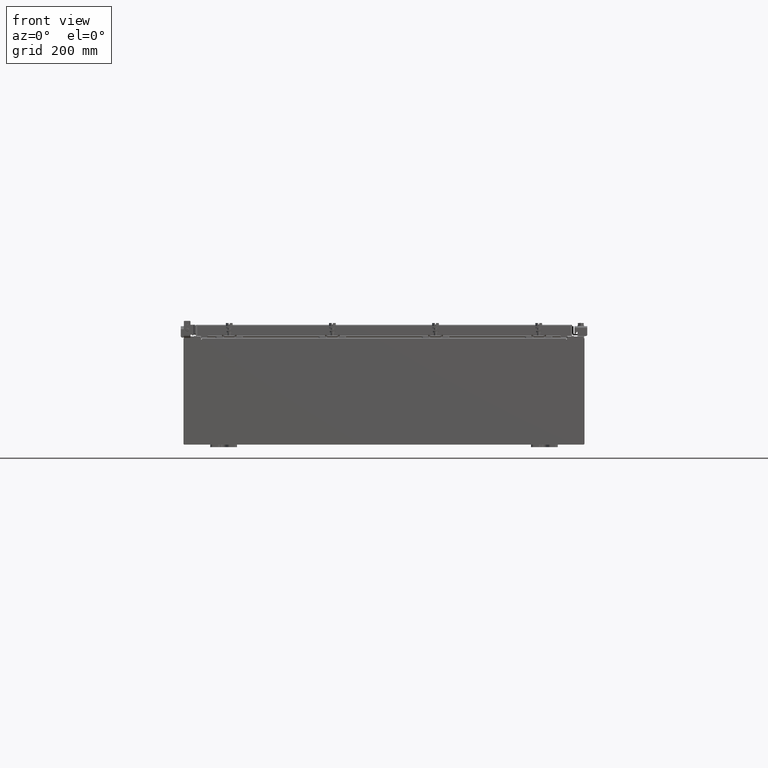
[diagram: clean part render]
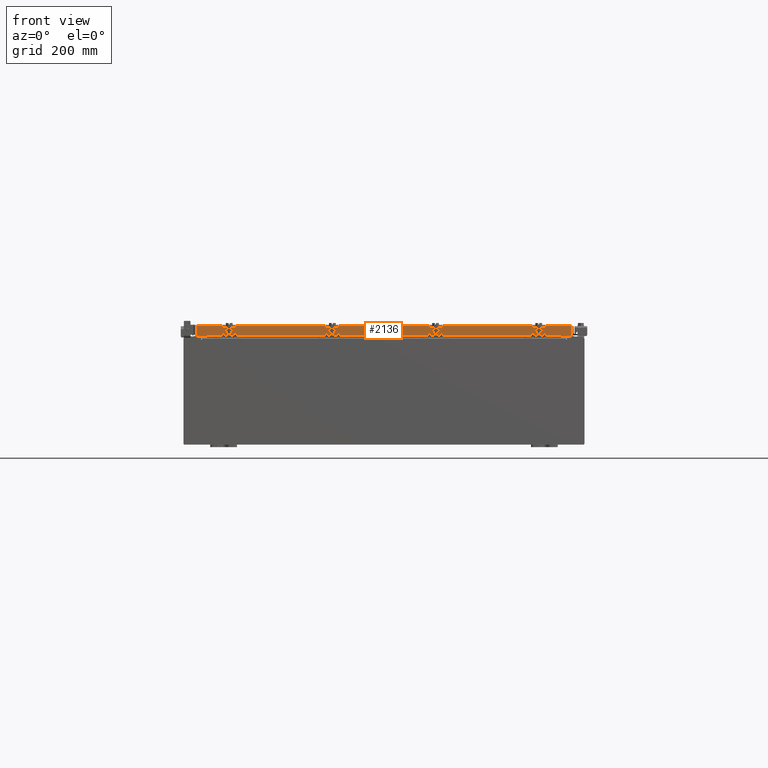
[diagram: same view with one face highlighted and labeled with its STEP entity id]
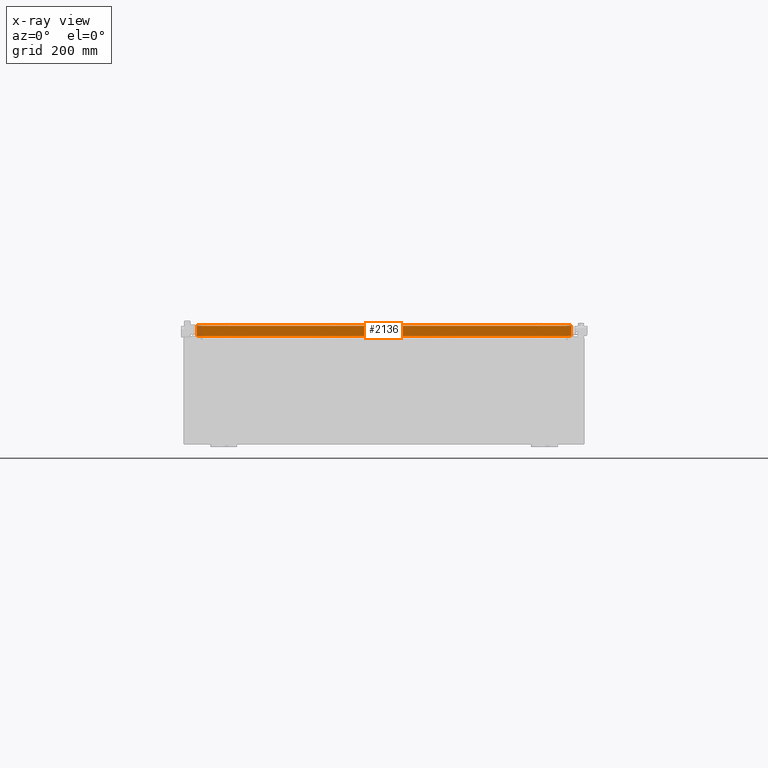
[diagram: x-ray of the same camera — body ghosted, the highlighted face saturated]
A machine part, front view. The second image highlights one B-rep face of the part: STEP entity #2136.
The next image is the same camera in x-ray: the body ghosted, the highlighted face saturated — about 0% of this face is hidden behind the body in this view.
In plain terms, the highlighted planar face has unit normal (-0, 1, -0).
Its self-contained STEP definition (entity closure, byte-faithful):
#26 = DIRECTION ( 'NONE',  ( -1.000000000000000000, -1.552406872376339400E-016, 1.212817869044015600E-016 ) ) ;
#613 = CARTESIAN_POINT ( 'NONE',  ( 13.23915786437626200, -20.09400000000000100, -0.8500000000000026400 ) ) ;
#1218 = DIRECTION ( 'NONE',  ( 0.0000000000000000000, -4.376050147970506700E-031, -1.000000000000000000 ) ) ;
#1486 = DIRECTION ( 'NONE',  ( -0.0000000000000000000, -4.376050147970506700E-031, -1.000000000000000000 ) ) ;
#1850 = CARTESIAN_POINT ( 'NONE',  ( -13.98915786437626500, -20.09400000000000800, -0.08769999999999589200 ) ) ;
#2136 = ADVANCED_FACE ( 'NONE', ( #2799 ), #24485, .F. ) ;
#2799 = FACE_OUTER_BOUND ( 'NONE', #11197, .T. ) ;
#4475 = EDGE_CURVE ( 'NONE', #11690, #13585, #6597, .T. ) ;
#4598 = LINE ( 'NONE', #18929, #9084 ) ;
#5006 = CARTESIAN_POINT ( 'NONE',  ( -13.98915786437626500, -20.09400000000000800, 2.608136560115908800E-016 ) ) ;
#5612 = CARTESIAN_POINT ( 'NONE',  ( -13.23915786437626400, -20.09400000000000100, -0.8500000000000026400 ) ) ;
#5694 = LINE ( 'NONE', #11231, #20246 ) ;
#5764 = VERTEX_POINT ( 'NONE', #10450 ) ;
#6538 = ORIENTED_EDGE ( 'NONE', *, *, #20460, .F. ) ;
#6597 = LINE ( 'NONE', #6741, #21760 ) ;
#6741 = CARTESIAN_POINT ( 'NONE',  ( 13.23915786437626400, -20.09400000000000100, -0.8500000000000026400 ) ) ;
#6773 = ORIENTED_EDGE ( 'NONE', *, *, #23363, .F. ) ;
#7433 = DIRECTION ( 'NONE',  ( -1.552406872376339400E-016, 1.000000000000000000, -4.376050147970506700E-031 ) ) ;
#8536 = VERTEX_POINT ( 'NONE', #13925 ) ;
#8564 = VECTOR ( 'NONE', #23834, 39.37007874015748100 ) ;
#9084 = VECTOR ( 'NONE', #26, 39.37007874015748100 ) ;
#9281 = CARTESIAN_POINT ( 'NONE',  ( 3.119406369353017900E-015, -20.09400000000000800, 2.608136560115908800E-016 ) ) ;
#9601 = ORIENTED_EDGE ( 'NONE', *, *, #17231, .F. ) ;
#10450 = CARTESIAN_POINT ( 'NONE',  ( -13.98915786437626500, -20.09400000000001200, -0.8499999999999963100 ) ) ;
#10944 = ORIENTED_EDGE ( 'NONE', *, *, #20866, .T. ) ;
#11015 = VERTEX_POINT ( 'NONE', #1850 ) ;
#11197 = EDGE_LOOP ( 'NONE', ( #6538, #10944, #9601, #15846, #14075, #6773 ) ) ;
#11231 = CARTESIAN_POINT ( 'NONE',  ( 14.07800000000000300, -20.09400000000000100, -0.08769999999999589200 ) ) ;
#11237 = AXIS2_PLACEMENT_3D ( 'NONE', #9281, #7433, #20755 ) ;
#11690 = VERTEX_POINT ( 'NONE', #613 ) ;
#12793 = CARTESIAN_POINT ( 'NONE',  ( 13.98915786437626700, -20.09400000000000800, -0.07470000000000000300 ) ) ;
#13002 = LINE ( 'NONE', #20019, #8564 ) ;
#13151 = DIRECTION ( 'NONE',  ( 1.000000000000000000, 1.552406872376339400E-016, -1.368455531567205100E-048 ) ) ;
#13539 = LINE ( 'NONE', #12793, #22498 ) ;
#13585 = VERTEX_POINT ( 'NONE', #5612 ) ;
#13925 = CARTESIAN_POINT ( 'NONE',  ( 13.98915786437626700, -20.09400000000000800, -0.8499999999999996400 ) ) ;
#14075 = ORIENTED_EDGE ( 'NONE', *, *, #24351, .F. ) ;
#14515 = VERTEX_POINT ( 'NONE', #16091 ) ;
#15846 = ORIENTED_EDGE ( 'NONE', *, *, #4475, .F. ) ;
#16091 = CARTESIAN_POINT ( 'NONE',  ( 13.98915786437626700, -20.09400000000000100, -0.08769999999999589200 ) ) ;
#17231 = EDGE_CURVE ( 'NONE', #13585, #5764, #13002, .T. ) ;
#17866 = VECTOR ( 'NONE', #1218, 39.37007874015748100 ) ;
#18115 = DIRECTION ( 'NONE',  ( -1.000000000000000000, 0.0000000000000000000, 0.0000000000000000000 ) ) ;
#18929 = CARTESIAN_POINT ( 'NONE',  ( 14.07800000000000300, -20.09400000000000800, -0.8499999999999996400 ) ) ;
#20019 = CARTESIAN_POINT ( 'NONE',  ( 14.07800000000000300, -20.09400000000000800, -0.8499999999999996400 ) ) ;
#20246 = VECTOR ( 'NONE', #13151, 39.37007874015748100 ) ;
#20460 = EDGE_CURVE ( 'NONE', #11015, #14515, #5694, .T. ) ;
#20755 = DIRECTION ( 'NONE',  ( -1.000000000000000000, -1.552406872376339400E-016, 0.0000000000000000000 ) ) ;
#20866 = EDGE_CURVE ( 'NONE', #11015, #5764, #23184, .T. ) ;
#21760 = VECTOR ( 'NONE', #18115, 39.37007874015748100 ) ;
#22498 = VECTOR ( 'NONE', #1486, 39.37007874015748100 ) ;
#23184 = LINE ( 'NONE', #5006, #17866 ) ;
#23363 = EDGE_CURVE ( 'NONE', #14515, #8536, #13539, .T. ) ;
#23834 = DIRECTION ( 'NONE',  ( -1.000000000000000000, -1.552406872376339400E-016, 1.212817869044015600E-016 ) ) ;
#24351 = EDGE_CURVE ( 'NONE', #8536, #11690, #4598, .T. ) ;
#24485 = PLANE ( 'NONE',  #11237 ) ;